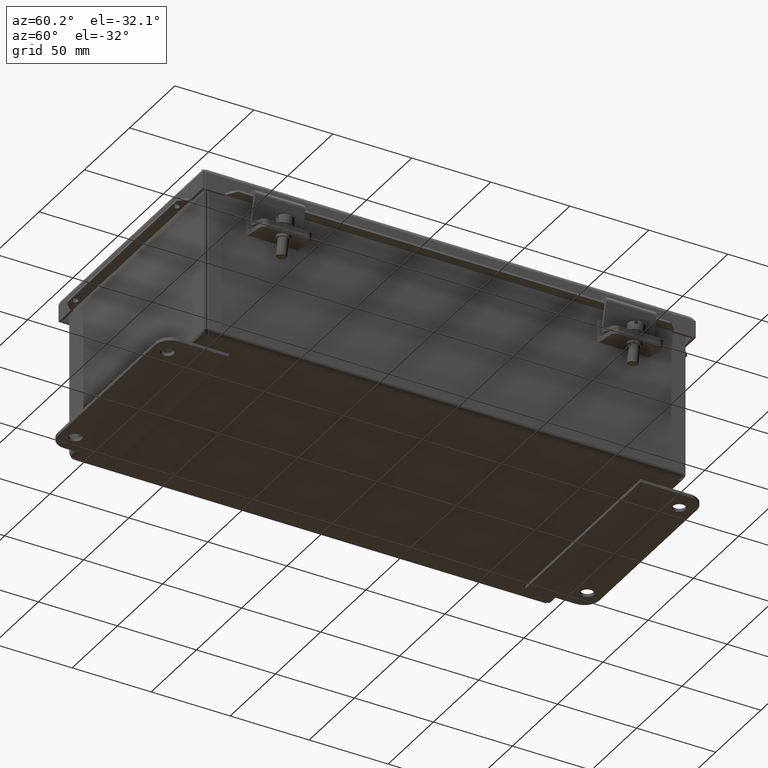
[diagram: clean part render]
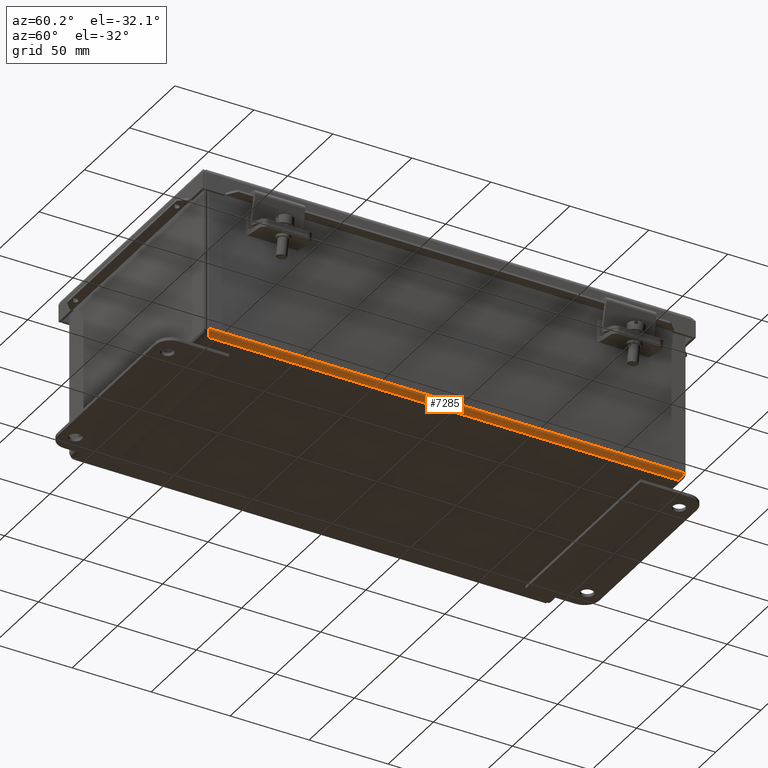
[diagram: same view with one face highlighted and labeled with its STEP entity id]
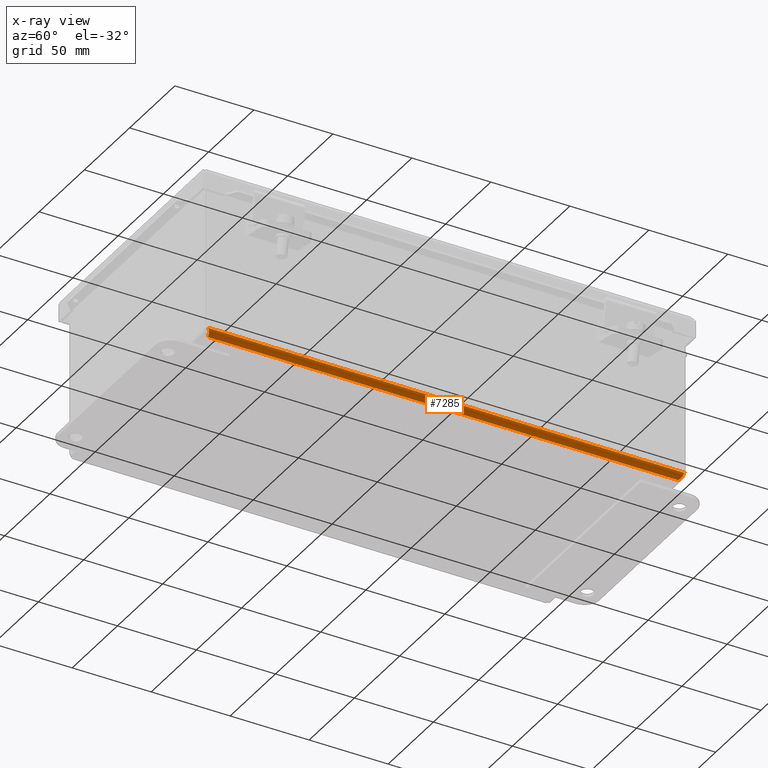
[diagram: x-ray of the same camera — body ghosted, the highlighted face saturated]
A machine part, auxiliary view. The second image highlights one B-rep face of the part: STEP entity #7285.
The next image is the same camera in x-ray: the body ghosted, the highlighted face saturated — about 0% of this face is hidden behind the body in this view.
In plain terms, the highlighted cylindrical surface (edge-blend (fillet) strip) has radius 3.5326 mm, axis along (0, -1, 0).
Its self-contained STEP definition (entity closure, byte-faithful):
#158=B_SPLINE_CURVE_WITH_KNOTS('',3,(#11341,#11342,#11343,#11344,#11345,
#11346,#11347),.UNSPECIFIED.,.F.,.F.,(4,3,4),(0.,0.673198425769245,1.5707963267949),
 .UNSPECIFIED.);
#159=B_SPLINE_CURVE_WITH_KNOTS('',3,(#11350,#11351,#11352,#11353,#11354,
#11355,#11356),.UNSPECIFIED.,.F.,.F.,(4,3,4),(0.,0.89759790102566,1.5707963267949),
 .UNSPECIFIED.);
#1033=LINE('',#11222,#1771);
#1058=LINE('',#11349,#1796);
#1771=VECTOR('',#8937,0.393700787401575);
#1796=VECTOR('',#8986,0.393700787401575);
#2364=CYLINDRICAL_SURFACE('',#7987,0.139078125);
#2558=FACE_OUTER_BOUND('',#2977,.T.);
#2977=EDGE_LOOP('',(#5719,#5720,#5721,#5722));
#3679=VERTEX_POINT('',#11219);
#3680=VERTEX_POINT('',#11221);
#3692=VERTEX_POINT('',#11269);
#3695=VERTEX_POINT('',#11348);
#4406=EDGE_CURVE('',#3679,#3680,#1033,.T.);
#4435=EDGE_CURVE('',#3692,#3679,#158,.T.);
#4436=EDGE_CURVE('',#3695,#3692,#1058,.T.);
#4437=EDGE_CURVE('',#3680,#3695,#159,.T.);
#5719=ORIENTED_EDGE('',*,*,#4406,.F.);
#5720=ORIENTED_EDGE('',*,*,#4435,.F.);
#5721=ORIENTED_EDGE('',*,*,#4436,.F.);
#5722=ORIENTED_EDGE('',*,*,#4437,.F.);
#7285=ADVANCED_FACE('',(#2558),#2364,.T.);
#7987=AXIS2_PLACEMENT_3D('',#11340,#8984,#8985);
#8937=DIRECTION('',(1.07294778784951E-18,1.,-1.97163724496796E-33));
#8984=DIRECTION('center_axis',(0.,-1.,0.));
#8985=DIRECTION('ref_axis',(0.,0.,-1.));
#8986=DIRECTION('',(0.,-1.,0.));
#11219=CARTESIAN_POINT('',(3.,-5.92995145654397,0.139078124999999));
#11221=CARTESIAN_POINT('',(3.,5.92995145654397,0.139078125));
#11222=CARTESIAN_POINT('',(3.,7.8674990754369E-16,0.139078125));
#11269=CARTESIAN_POINT('',(2.860921875,-5.860921875,0.));
#11340=CARTESIAN_POINT('Origin',(2.860921875,1.3987061727561E-15,0.139078125));
#11341=CARTESIAN_POINT('Ctrl Pts',(2.860921875,-5.860921875,8.74191357972564E-17));
#11342=CARTESIAN_POINT('Ctrl Pts',(2.89213093326964,-5.87078324379199,-2.42744207437025E-16));
#11343=CARTESIAN_POINT('Ctrl Pts',(2.92337968801931,-5.88064461258399,0.0109105556510349));
#11344=CARTESIAN_POINT('Ctrl Pts',(2.94765648156667,-5.89050598137599,0.0303711335147387));
#11345=CARTESIAN_POINT('Ctrl Pts',(2.98002553962983,-5.90365447309865,0.0563185706663438));
#11346=CARTESIAN_POINT('Ctrl Pts',(3.,-5.91680296482131,0.0974660473071378));
#11347=CARTESIAN_POINT('Ctrl Pts',(3.,-5.92995145654397,0.139078124999999));
#11348=CARTESIAN_POINT('',(2.860921875,5.860921875,-1.09273919746571E-17));
#11349=CARTESIAN_POINT('',(2.860921875,2.9304609375,0.));
#11350=CARTESIAN_POINT('Ctrl Pts',(3.,5.92995145654397,0.139078125000001));
#11351=CARTESIAN_POINT('Ctrl Pts',(3.,5.91680296482131,0.0974660473071393));
#11352=CARTESIAN_POINT('Ctrl Pts',(2.98002553962983,5.90365447309865,0.0563185706663451));
#11353=CARTESIAN_POINT('Ctrl Pts',(2.94765648156667,5.89050598137599,0.0303711335147396));
#11354=CARTESIAN_POINT('Ctrl Pts',(2.92337968801931,5.88064461258399,0.0109105556510355));
#11355=CARTESIAN_POINT('Ctrl Pts',(2.89213093326965,5.870783243792,8.74191357972564E-17));
#11356=CARTESIAN_POINT('Ctrl Pts',(2.860921875,5.860921875,8.74191357972564E-17));